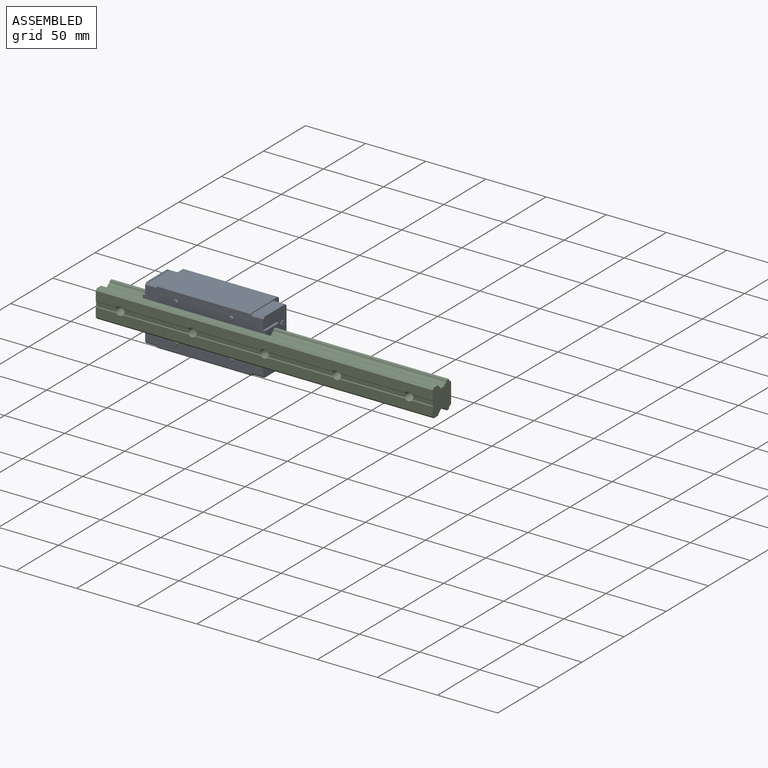
[diagram: assembled view]
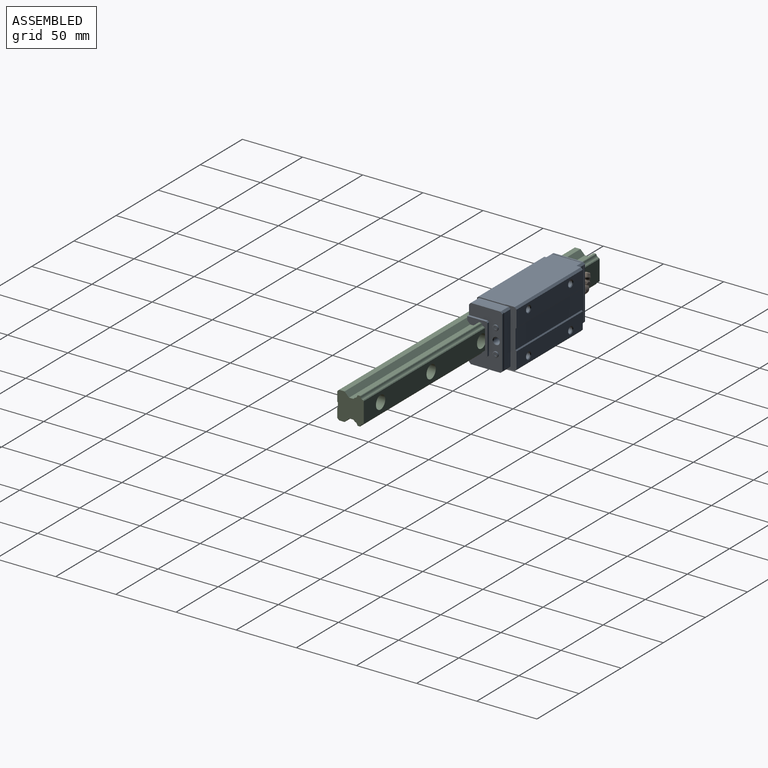
[diagram: assembled view, second angle]
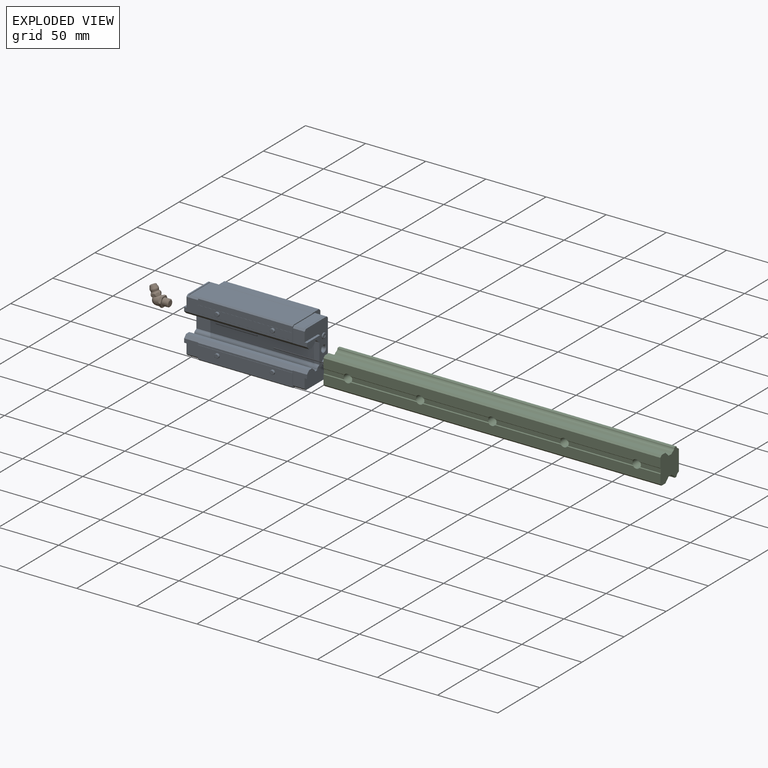
[diagram: exploded view]
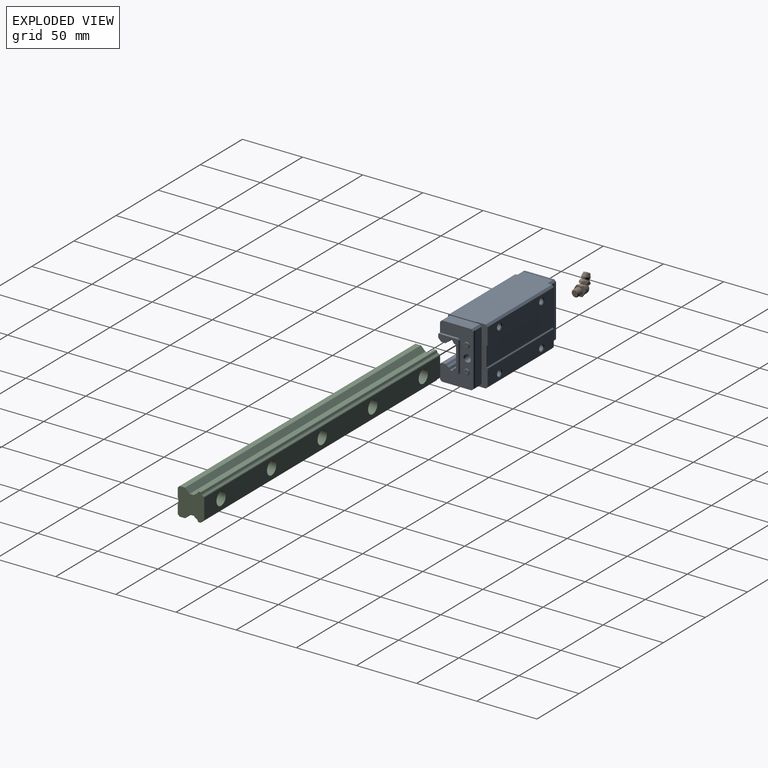
[diagram: exploded view, second angle]
ASSEMBLY  parts=3 mates=2
PART A: 166 faces, bbox 102.2x34.5x48 mm
  f0: cone r=2.46mm half-angle=60deg, axis (-1,0,0), area 21.9mm2, adj f132
  f1: plane 78.6x6mm, normal (0,-1,0), area 452.2mm2, adj f25,f26,f42,f43,f141,f144
  f2: plane 25x2mm, normal (0,1,0), area 50mm2, adj f3,f4,f51,f145
  f3: plane 2x1mm, normal (0,0.71,0.71), area 2.8mm2, adj f2,f51,f145,f146
  f4: plane 2x1mm, normal (0,0.71,-0.71), area 2.8mm2, adj f2,f51,f145,f165
  f5: plane 9.8x1.5mm, normal (0,0.71,0.71), area 20.4mm2, adj f6,f7,f26,f116,f117,f126,f127,f145
  f6: plane 24.68x8mm, normal (0,0,1), area 197.5mm2, adj f5,f12,f26,f126
  f7: plane 43x1.3mm, normal (0,1,0), area 55.9mm2, adj f5,f8,f116,f145
  f8: plane 9.8x1.5mm, normal (0,0.71,-0.71), area 20.4mm2, adj f7,f9,f26,f116,f117,f122,f123,f145
  f9: plane 24.68x1.3mm, normal (0,0,-1), area 32.1mm2, adj f8,f10,f122,f145
  f10: plane 9.8x1.5mm, normal (0,-0.71,-0.71), area 20.6mm2, adj f9,f26,f122,f123,f145,f160,f162
  f11: plane 11.8x11.22mm, normal (0,-1,0), area 116.4mm2, adj f12,f26,f51,f61,f145,f146
  f12: plane 9.8x1.5mm, normal (0,-0.71,0.71), area 20.6mm2, adj f6,f11,f26,f126,f127,f145,f164
  f13: cone r=2.46mm half-angle=45deg, axis (0,1,0), area 13.1mm2, adj f14,f27
  f14: cylinder r=2.46mm len=9.06mm, axis (0,-1,0), area 139.9mm2, adj f13,f15
  f15: cone r=866.03mm half-angle=60deg, axis (0,1,0), area 21.9mm2, adj f14
  f16: cone r=2.46mm half-angle=45deg, axis (0,1,0), area 13.1mm2, adj f17,f31
  f17: cylinder r=2.46mm len=9.06mm, axis (0,-1,0), area 139.9mm2, adj f16,f18
  f18: cone r=866.03mm half-angle=60deg, axis (0,1,0), area 21.9mm2, adj f17
  f19: cone r=2.46mm half-angle=45deg, axis (0,1,0), area 13.1mm2, adj f20,f31
  f20: cylinder r=2.46mm len=9.06mm, axis (0,-1,0), area 139.9mm2, adj f19,f21
  f21: cone r=866.03mm half-angle=60deg, axis (0,1,0), area 21.9mm2, adj f20
  f22: cone r=2.46mm half-angle=45deg, axis (0,1,0), area 13.1mm2, adj f23,f27
  f23: cylinder r=2.46mm len=9.06mm, axis (0,-1,0), area 139.9mm2, adj f22,f24
  f24: cone r=866.03mm half-angle=60deg, axis (0,1,0), area 21.9mm2, adj f23
  f25: plane 48x32.98mm, normal (1,0,0), area 277.1mm2, adj f1,f27,f28,f29,f30,f31,f32,f33
  f26: plane 48x32.98mm, normal (-1,0,0), area 277.1mm2, adj f1,f5,f6,f8,f10,f11,f12,f27
  f27: plane 78.6x13.65mm, normal (0,1,0), area 1016.3mm2, adj f13,f22,f25,f26,f28,f49
  f28: plane 78.6x0.85mm, normal (0,0.71,-0.71), area 94.5mm2, adj f25,f26,f27,f29
  f29: plane 78.6x16mm, normal (0,1,0), area 1257.6mm2, adj f25,f26,f28,f30
  f30: plane 78.6x0.85mm, normal (0,0.71,0.71), area 94.5mm2, adj f25,f26,f29,f31
  f31: plane 78.6x13.65mm, normal (0,1,0), area 1016.3mm2, adj f16,f19,f25,f26,f30,f32
  f32: plane 78.6x1.5mm, normal (0,0.71,-0.71), area 166.7mm2, adj f25,f26,f31,f33
  f33: plane 78.6x7.5mm, normal (0,0,-1), area 589.5mm2, adj f25,f26,f32,f34
  f34: plane 78.6x0.25mm, normal (0,-0.71,-0.71), area 27.8mm2, adj f25,f26,f33,f35
  f35: plane 78.6x22.63mm, normal (0,0,-1), area 1779mm2, adj f25,f26,f34,f36
  f36: plane 78.6x1mm, normal (0,-0.71,-0.71), area 111.2mm2, adj f25,f26,f35,f37
  f37: plane 78.6x4.7mm, normal (0,-1,0), area 369.4mm2, adj f25,f26,f36,f38
  f38: plane 78.6x0.1mm, normal (0,0,-1), area 7.9mm2, adj f25,f26,f37,f39
  f39: plane 78.6x6mm, normal (0,-1,0), area 452.2mm2, adj f25,f26,f38,f40,f135,f138
  f40: cylinder r=0.1mm len=78.6mm, axis (1,0,0), area 12.3mm2, adj f25,f26,f39,f159
  f41: plane 78.6x1.47mm, normal (0,-1,0), area 115.3mm2, adj f25,f26,f42,f61
  f42: cylinder r=0.1mm len=78.6mm, axis (1,0,0), area 12.3mm2, adj f1,f25,f26,f41
  f43: plane 78.6x0.1mm, normal (0,0,1), area 7.9mm2, adj f1,f25,f26,f44
  f44: plane 78.6x4.7mm, normal (0,-1,0), area 369.4mm2, adj f25,f26,f43,f45
  f45: plane 78.6x1mm, normal (0,-0.71,0.71), area 111.2mm2, adj f25,f26,f44,f46
  f46: plane 78.6x22.63mm, normal (0,0,1), area 1779mm2, adj f25,f26,f45,f47
  f47: plane 78.6x0.25mm, normal (0,-0.71,0.71), area 27.8mm2, adj f25,f26,f46,f48
  f48: plane 78.6x7.5mm, normal (0,0,1), area 589.5mm2, adj f25,f26,f47,f49
  f49: plane 78.6x1.5mm, normal (0,0.71,0.71), area 166.7mm2, adj f25,f26,f27,f48
  f50: plane 27x16.68mm, normal (1,0,0), area 177.4mm2, adj f52,f53,f54,f55,f56,f57,f58,f59
  f51: plane 27x16.68mm, normal (-1,0,0), area 177.4mm2, adj f2,f3,f4,f11,f57,f58,f59,f60
  f52: plane 2x1mm, normal (0,0.71,0.71), area 2.8mm2, adj f50,f53,f56,f147
  f53: plane 25x2mm, normal (0,1,0), area 50mm2, adj f50,f52,f54,f147
  f54: plane 2x1mm, normal (0,0.71,-0.71), area 2.8mm2, adj f50,f53,f55,f147
  f55: plane 15.68x2mm, normal (0,0,-1), area 31.4mm2, adj f50,f54,f147,f158
  f56: plane 15.68x2mm, normal (0,0,1), area 31.4mm2, adj f50,f52,f147,f153
  f57: plane 102.2x1.23mm, normal (0,0.71,0.71), area 177.9mm2, adj f50,f51,f58,f59
  f58: cylinder r=2.48mm len=102.2mm, axis (1,0,0), area 318.4mm2, adj f50,f51,f57,f62
  f59: plane 102.2x3.58mm, normal (0,0,1), area 365.9mm2, adj f50,f51,f57,f60
  f60: plane 102.2x2.68mm, normal (0,-0.71,0.71), area 381.1mm2, adj f25,f26,f50,f51,f59,f158,f159,f160
  f61: plane 102.2x2.68mm, normal (0,-0.71,-0.71), area 381.1mm2, adj f11,f25,f26,f41,f50,f51,f75,f153
  f62: plane 102.2x0.41mm, normal (0,0.71,0.71), area 59mm2, adj f50,f51,f58,f63
  f63: plane 102.2x1.83mm, normal (0,0,1), area 187mm2, adj f50,f51,f62,f64
  f64: plane 102.2x0.42mm, normal (0,-0.71,0.71), area 61.1mm2, adj f50,f51,f63,f65
  f65: cylinder r=2.48mm len=102.2mm, axis (1,0,0), area 315.4mm2, adj f50,f51,f64,f66
  f66: plane 102.2x0.62mm, normal (0,-0.71,0.71), area 90mm2, adj f50,f51,f65,f67
  f67: plane 102.2x16.82mm, normal (0,-1,0), area 1719mm2, adj f50,f51,f66,f68
  f68: plane 102.2x0.62mm, normal (0,-0.71,-0.71), area 90mm2, adj f50,f51,f67,f69
  f69: cylinder r=2.48mm len=102.2mm, axis (1,0,0), area 315.4mm2, adj f50,f51,f68,f70
  f70: plane 102.2x0.42mm, normal (0,-0.71,-0.71), area 61.1mm2, adj f50,f51,f69,f71
  f71: plane 102.2x1.83mm, normal (0,0,-1), area 187mm2, adj f50,f51,f70,f72
  f72: plane 102.2x0.41mm, normal (0,0.71,-0.71), area 59mm2, adj f50,f51,f71,f73
  f73: cylinder r=2.48mm len=102.2mm, axis (1,0,0), area 318.4mm2, adj f50,f51,f72,f74
  f74: plane 102.2x1.23mm, normal (0,0.71,-0.71), area 177.9mm2, adj f50,f51,f73,f75
  f75: plane 102.2x3.58mm, normal (0,0,-1), area 365.9mm2, adj f50,f51,f61,f74
  f76: cylinder r=2.25mm len=4.5mm, axis (-1,0,0), area 10.1mm2, adj f77,f147
  f77: torus R=2.01mm, axis (1,0,0), area 5.1mm2, adj f76,f78
  f78: plane 4.03x4.03mm, normal (1,0,0), area 9.3mm2, adj f77,f88,f89,f90,f91,f92,f93
  f79: plane 4.03x4.03mm, normal (-1,0,0), area 9.3mm2, adj f80,f102,f103,f104,f105,f106,f107
  f80: torus R=2.01mm, axis (1,0,0), area 5.1mm2, adj f79,f81
  f81: cylinder r=2.25mm len=4.5mm, axis (-1,0,0), area 10.1mm2, adj f80,f145
  f82: cylinder r=2.25mm len=4.5mm, axis (-1,0,0), area 10.1mm2, adj f83,f147
  f83: torus R=2.01mm, axis (1,0,0), area 5.1mm2, adj f82,f84
  f84: plane 4.03x4.03mm, normal (1,0,0), area 9.3mm2, adj f83,f95,f96,f97,f98,f99,f100
  f85: plane 4.03x4.03mm, normal (-1,0,0), area 9.3mm2, adj f86,f109,f110,f111,f112,f113,f114
  f86: torus R=2.01mm, axis (1,0,0), area 5.1mm2, adj f85,f87
  f87: cylinder r=2.25mm len=4.5mm, axis (-1,0,0), area 10.1mm2, adj f86,f145
  f88: plane 1.15x0.48mm, normal (0,0,-1), area 0.5mm2, adj f78,f89,f93,f94
  f89: plane 1x0.58mm, normal (0,0.87,-0.5), area 0.5mm2, adj f78,f88,f90,f94
  f90: plane 1x0.58mm, normal (0,0.87,0.5), area 0.5mm2, adj f78,f89,f91,f94
  f91: plane 1.15x0.48mm, normal (0,0,1), area 0.5mm2, adj f78,f90,f92,f94
  f92: plane 1x0.58mm, normal (0,-0.87,0.5), area 0.5mm2, adj f78,f91,f93,f94
  f93: plane 1x0.58mm, normal (0,-0.87,-0.5), area 0.5mm2, adj f78,f88,f92,f94
  f94: plane 2.31x2mm, normal (1,0,0), area 3.5mm2, adj f88,f89,f90,f91,f92,f93
  f95: plane 1.15x0.48mm, normal (0,0,-1), area 0.5mm2, adj f84,f96,f100,f101
  f96: plane 1x0.58mm, normal (0,0.87,-0.5), area 0.5mm2, adj f84,f95,f97,f101
  f97: plane 1x0.58mm, normal (0,0.87,0.5), area 0.5mm2, adj f84,f96,f98,f101
  f98: plane 1.15x0.48mm, normal (0,0,1), area 0.5mm2, adj f84,f97,f99,f101
  f99: plane 1x0.58mm, normal (0,-0.87,0.5), area 0.5mm2, adj f84,f98,f100,f101
  f100: plane 1x0.58mm, normal (0,-0.87,-0.5), area 0.5mm2, adj f84,f95,f99,f101
  f101: plane 2.31x2mm, normal (1,0,0), area 3.5mm2, adj f95,f96,f97,f98,f99,f100
  f102: plane 1.15x0.48mm, normal (0,0,-1), area 0.5mm2, adj f79,f103,f107,f108
  f103: plane 1x0.58mm, normal (0,0.87,-0.5), area 0.5mm2, adj f79,f102,f104,f108
  f104: plane 1x0.58mm, normal (0,0.87,0.5), area 0.5mm2, adj f79,f103,f105,f108
  f105: plane 1.15x0.48mm, normal (0,0,1), area 0.5mm2, adj f79,f104,f106,f108
  f106: plane 1x0.58mm, normal (0,-0.87,0.5), area 0.5mm2, adj f79,f105,f107,f108
  f107: plane 1x0.58mm, normal (0,-0.87,-0.5), area 0.5mm2, adj f79,f102,f106,f108
  f108: plane 2.31x2mm, normal (-1,0,0), area 3.5mm2, adj f102,f103,f104,f105,f106,f107
  f109: plane 1.15x0.48mm, normal (0,0,-1), area 0.5mm2, adj f85,f110,f114,f115
  f110: plane 1x0.58mm, normal (0,0.87,-0.5), area 0.5mm2, adj f85,f109,f111,f115
  f111: plane 1x0.58mm, normal (0,0.87,0.5), area 0.5mm2, adj f85,f110,f112,f115
  f112: plane 1.15x0.48mm, normal (0,0,1), area 0.5mm2, adj f85,f111,f113,f115
  f113: plane 1x0.58mm, normal (0,-0.87,0.5), area 0.5mm2, adj f85,f112,f114,f115
  f114: plane 1x0.58mm, normal (0,-0.87,-0.5), area 0.5mm2, adj f85,f109,f113,f115
  f115: plane 2.31x2mm, normal (-1,0,0), area 3.5mm2, adj f109,f110,f111,f112,f113,f114
  f116: plane 44x0.5mm, normal (1,0,0), area 21.7mm2, adj f5,f7,f8,f117
  f117: plane 44x0.5mm, normal (-0.71,0.71,0), area 30.8mm2, adj f5,f8,f116,f157
  f118: plane 44x0.5mm, normal (0.71,0.71,0), area 30.8mm2, adj f119,f148,f149,f150
  f119: plane 44x0.5mm, normal (-1,0,0), area 21.7mm2, adj f118,f148,f150,f156
  f120: plane 25.68x0.5mm, normal (0.71,0,-0.71), area 17.8mm2, adj f121,f150,f151,f152
  f121: plane 25.68x0.5mm, normal (-1,0,0), area 12.6mm2, adj f120,f150,f152,f161
  f122: plane 25.68x0.5mm, normal (1,0,0), area 12.6mm2, adj f8,f9,f10,f123
  f123: plane 25.68x0.5mm, normal (-0.71,0,-0.71), area 17.8mm2, adj f8,f10,f122,f162
  f124: plane 25.68x0.5mm, normal (0.71,0,0.71), area 17.8mm2, adj f125,f148,f154,f163
  f125: plane 25.68x0.5mm, normal (-1,0,0), area 12.6mm2, adj f124,f148,f154,f155
  f126: plane 25.68x0.5mm, normal (-0.71,0,0.71), area 17.8mm2, adj f5,f6,f12,f127
  f127: plane 25.68x0.5mm, normal (1,0,0), area 12.6mm2, adj f5,f12,f126,f164
  f128: cone r=866.03mm half-angle=60deg, axis (1,0,0), area 21.9mm2, adj f129
  f129: cylinder r=2.46mm len=5.46mm, axis (-1,0,0), area 84.3mm2, adj f128,f130
  f130: cone r=2.46mm half-angle=45deg, axis (1,0,0), area 13.1mm2, adj f129,f147
  f131: cone r=3mm half-angle=45deg, axis (-1,0,0), area 13.1mm2, adj f132,f145
  f132: cylinder r=2.46mm len=5.46mm, axis (-1,0,0), area 84.3mm2, adj f0,f131
  f133: plane 2.81x2.81mm, normal (0,-1,0), area 6.2mm2, adj f134
  f134: torus R=1.41mm, axis (0,1,0), area 5.7mm2, adj f133,f135
  f135: cylinder r=1.76mm len=3.52mm, axis (0,-1,0), area 12.9mm2, adj f39,f134
  f136: plane 2.81x2.81mm, normal (0,-1,0), area 6.2mm2, adj f137
  f137: torus R=1.41mm, axis (0,1,0), area 5.7mm2, adj f136,f138
  f138: cylinder r=1.76mm len=3.52mm, axis (0,-1,0), area 12.9mm2, adj f39,f137
  f139: plane 2.81x2.81mm, normal (0,-1,0), area 6.2mm2, adj f140
  f140: torus R=1.41mm, axis (0,1,0), area 5.7mm2, adj f139,f141
  f141: cylinder r=1.76mm len=3.52mm, axis (0,-1,0), area 12.9mm2, adj f1,f140
  f142: plane 2.81x2.81mm, normal (0,-1,0), area 6.2mm2, adj f143
  f143: torus R=1.41mm, axis (0,1,0), area 5.7mm2, adj f142,f144
  f144: cylinder r=1.76mm len=3.52mm, axis (0,-1,0), area 12.9mm2, adj f1,f143
  f145: plane 46x27.68mm, normal (-1,0,0), area 759.4mm2, adj f2,f3,f4,f5,f7,f8,f9,f10
  f146: plane 15.68x2mm, normal (0,0,1), area 31.4mm2, adj f3,f11,f51,f145
  f147: plane 46x27.68mm, normal (1,0,0), area 759.4mm2, adj f52,f53,f54,f55,f56,f76,f82,f130
  f148: plane 9.8x1.5mm, normal (0,0.71,0.71), area 20.4mm2, adj f25,f118,f119,f124,f125,f147,f149,f155
  f149: plane 43x8mm, normal (0,1,0), area 344mm2, adj f25,f118,f148,f150
  f150: plane 9.8x1.5mm, normal (0,0.71,-0.71), area 20.4mm2, adj f25,f118,f119,f120,f121,f147,f149,f151
  f151: plane 24.68x8mm, normal (0,0,-1), area 197.5mm2, adj f25,f120,f150,f152
  f152: plane 9.8x1.5mm, normal (0,-0.71,-0.71), area 20.6mm2, adj f25,f120,f121,f147,f151,f158,f161
  f153: plane 11.8x11.22mm, normal (0,-1,0), area 116.4mm2, adj f25,f50,f56,f61,f147,f154
  f154: plane 9.8x1.5mm, normal (0,-0.71,0.71), area 20.6mm2, adj f25,f124,f125,f147,f153,f155,f163
  f155: plane 24.68x1.3mm, normal (0,0,1), area 32.1mm2, adj f125,f147,f148,f154
  f156: plane 43x1.3mm, normal (0,1,0), area 55.9mm2, adj f119,f147,f148,f150
  f157: plane 43x8mm, normal (0,1,0), area 344mm2, adj f5,f8,f26,f117
  f158: plane 11.8x11.22mm, normal (0,-1,0), area 116.4mm2, adj f25,f50,f55,f60,f147,f152
  f159: plane 78.6x1.47mm, normal (0,-1,0), area 115.3mm2, adj f25,f26,f40,f60
  f160: plane 11.8x11.22mm, normal (0,-1,0), area 116.4mm2, adj f10,f26,f51,f60,f145,f165
  f161: plane 24.68x1.3mm, normal (0,0,-1), area 32.1mm2, adj f121,f147,f150,f152
  f162: plane 24.68x8mm, normal (0,0,-1), area 197.5mm2, adj f8,f10,f26,f123
  f163: plane 24.68x8mm, normal (0,0,1), area 197.5mm2, adj f25,f124,f148,f154
  f164: plane 24.68x1.3mm, normal (0,0,1), area 32.1mm2, adj f5,f12,f127,f145
  f165: plane 15.68x2mm, normal (0,0,-1), area 31.4mm2, adj f4,f51,f145,f160
PART B: 38 faces, bbox 16.7x9.4x15.9 mm
  f0: plane 4.18x2.67mm, normal (0,-1,0), area 7.7mm2, adj f1,f30,f31,f37
  f1: cone r=3.44mm half-angle=45deg, axis (-0.37,0,0.93), area 7.3mm2, adj f0,f2,f27,f28,f29,f30,f31
  f2: plane 4.18x2.67mm, normal (0,1,0), area 7.7mm2, adj f1,f28,f29,f37
  f3: plane 4.15x2.46mm, normal (0,-0.87,0.5), area 8.7mm2, adj f4,f10,f14,f15,f16,f25,f26
  f4: plane 9.24x8mm, normal (1,0,0), area 27.2mm2, adj f3,f5,f10,f11,f12,f13,f14
  f5: cylinder r=3mm len=6mm, axis (-1,0,0), area 82.7mm2, adj f4,f9
  f6: cylinder r=4mm len=8mm, axis (-1,0,0), area 77.5mm2, adj f7,f16,f18,f20,f22,f24,f26,f27
  f7: sphere r=4mm, area 81.2mm2, adj f6,f27
  f8: plane 4.77x4.77mm, normal (1,0,0), area 17.9mm2, adj f9
  f9: cone r=3mm half-angle=45deg, axis (-1,0,0), area 14.7mm2, adj f5,f8
  f10: plane 4.76x2.15mm, normal (0,0,1), area 8.7mm2, adj f3,f4,f11,f15,f16,f23,f24
  f11: plane 4.15x2.46mm, normal (0,0.87,0.5), area 8.7mm2, adj f4,f10,f12,f21,f22,f23,f24
  f12: plane 4.15x2.46mm, normal (0,0.87,-0.5), area 8.7mm2, adj f4,f11,f13,f19,f20,f21,f22
  f13: plane 4.76x2.15mm, normal (0,0,-1), area 8.7mm2, adj f4,f12,f14,f17,f18,f19,f20
  f14: plane 4.15x2.46mm, normal (0,-0.87,-0.5), area 8.7mm2, adj f3,f4,f13,f17,f18,f25,f26
  f15: cone r=4.12mm half-angle=45deg, axis (1,0,0), area 0.9mm2, adj f3,f10,f16
  f16: plane 3.46x2mm, normal (-1,0,0), area 0.4mm2, adj f3,f6,f10,f15
  f17: cone r=4.12mm half-angle=45deg, axis (1,0,0), area 0.9mm2, adj f13,f14,f18
  f18: plane 3.46x2mm, normal (-1,0,0), area 0.4mm2, adj f6,f13,f14,f17
  f19: cone r=4.12mm half-angle=45deg, axis (1,0,0), area 0.9mm2, adj f12,f13,f20
  f20: plane 3.46x2mm, normal (-1,0,0), area 0.4mm2, adj f6,f12,f13,f19
  f21: cone r=4.12mm half-angle=45deg, axis (1,0,0), area 0.9mm2, adj f11,f12,f22
  f22: plane 4x0.66mm, normal (-1,0,0), area 0.4mm2, adj f6,f11,f12,f21
  f23: cone r=4.12mm half-angle=45deg, axis (1,0,0), area 0.9mm2, adj f10,f11,f24
  f24: plane 3.46x2mm, normal (-1,0,0), area 0.4mm2, adj f6,f10,f11,f23
  f25: cone r=4.12mm half-angle=45deg, axis (1,0,0), area 0.9mm2, adj f3,f14,f26
  f26: plane 4x0.66mm, normal (-1,0,0), area 0.4mm2, adj f3,f6,f14,f25
  f27: plane 6.89x6.39mm, normal (0.37,0,-0.93), area 15.1mm2, adj f1,f6,f7
  f28: plane 3.5x2.31mm, normal (0.8,0.5,0.32), area 7.7mm2, adj f1,f2,f31,f37
  f29: plane 3.5x2.31mm, normal (-0.8,0.5,-0.32), area 7.7mm2, adj f1,f2,f30,f37
  f30: plane 3.5x2.31mm, normal (-0.8,-0.5,-0.32), area 7.7mm2, adj f0,f1,f29,f37
  f31: plane 3.5x2.31mm, normal (0.8,-0.5,0.32), area 7.7mm2, adj f0,f1,f28,f37
  f32: sphere r=1.82mm, area 4.4mm2, adj f33
  f33: plane 4.85x4.5mm, normal (-0.37,0,0.93), area 14.5mm2, adj f32,f34
  f34: cone r=3.3mm half-angle=18deg, axis (0.37,0,-0.93), area 51mm2, adj f33,f35
  f35: sphere r=3.3mm, area 30mm2, adj f34,f36
  f36: torus R=3.68mm, axis (-0.37,0,0.93), area 13.5mm2, adj f35,f37
  f37: torus R=8.32mm, axis (-0.37,0,0.93), area 26.7mm2, adj f0,f2,f28,f29,f30,f31,f36
PART C: 60 faces, bbox 280x22x23 mm
  f0: cylinder r=3.5mm len=13mm, axis (0,1,0), area 281.6mm2, adj f3,f4,f16,f17,f18,f19,f20,f54
  f1: cylinder r=5.5mm len=11mm, axis (0,1,0), area 311mm2, adj f32,f54
  f2: plane 11x11mm, normal (0,1,0), area 56.5mm2, adj f52,f53
  f3: plane 54.65x0.52mm, normal (0,-0.71,-0.71), area 38.4mm2, adj f0,f16,f19,f53
  f4: plane 17.33x0.52mm, normal (0,-0.71,-0.71), area 12.1mm2, adj f0,f17,f19,f42
  f5: plane 17.33x0.52mm, normal (0,-0.71,-0.71), area 12.1mm2, adj f6,f19,f41,f45
  f6: plane 16.97x3.5mm, normal (0,-1,0), area 58.3mm2, adj f5,f41,f45,f57
  f7: plane 53.94x3.5mm, normal (0,-1,0), area 186.6mm2, adj f8,f9,f45,f48
  f8: plane 54.65x0.52mm, normal (0,-0.71,-0.71), area 38.4mm2, adj f7,f19,f45,f48
  f9: plane 54.65x0.52mm, normal (0,-0.71,0.71), area 38.4mm2, adj f7,f18,f45,f48
  f10: plane 53.94x3.5mm, normal (0,-1,0), area 186.6mm2, adj f11,f12,f48,f51
  f11: plane 54.65x0.52mm, normal (0,-0.71,-0.71), area 38.4mm2, adj f10,f19,f48,f51
  f12: plane 54.65x0.52mm, normal (0,-0.71,0.71), area 38.4mm2, adj f10,f18,f48,f51
  f13: plane 53.94x3.5mm, normal (0,-1,0), area 186.6mm2, adj f14,f15,f51,f53
  f14: plane 54.65x0.52mm, normal (0,-0.71,-0.71), area 38.4mm2, adj f13,f19,f51,f53
  f15: plane 54.65x0.52mm, normal (0,-0.71,0.71), area 38.4mm2, adj f13,f18,f51,f53
  f16: plane 53.94x3.5mm, normal (0,-1,0), area 186.6mm2, adj f0,f3,f53,f59
  f17: plane 16.97x3.5mm, normal (0,-1,0), area 58.3mm2, adj f0,f4,f20,f42
  f18: plane 280x7.75mm, normal (0,-1,0), area 2146.7mm2, adj f0,f9,f12,f15,f20,f21,f41,f42
  f19: plane 280x7.75mm, normal (0,-1,0), area 2146.7mm2, adj f0,f3,f4,f5,f8,f11,f14,f41
  f20: plane 17.33x0.52mm, normal (0,-0.71,0.71), area 12.1mm2, adj f0,f17,f18,f42
  f21: plane 280x1.5mm, normal (0,-0.71,-0.71), area 594mm2, adj f18,f22,f41,f42
  f22: plane 280x4.6mm, normal (0,0,-1), area 1288mm2, adj f21,f23,f41,f42
  f23: plane 280x3.7mm, normal (0,0.71,-0.71), area 1465.1mm2, adj f22,f24,f41,f42
  f24: plane 280x3.58mm, normal (0,0,-1), area 1002.4mm2, adj f23,f25,f41,f42
  f25: plane 280x1.23mm, normal (0,-0.71,-0.71), area 487.3mm2, adj f24,f26,f41,f42
  f26: cylinder r=2.48mm len=280mm, axis (1,0,0), area 872.3mm2, adj f25,f27,f41,f42
  f27: plane 280x0.41mm, normal (0,-0.71,-0.71), area 161.8mm2, adj f26,f28,f41,f42
  f28: plane 280x1.83mm, normal (0,0,-1), area 512.5mm2, adj f27,f29,f41,f42
  f29: plane 280x0.42mm, normal (0,0.71,-0.71), area 167.5mm2, adj f28,f30,f41,f42
  f30: cylinder r=2.48mm len=280mm, axis (1,0,0), area 864.1mm2, adj f29,f31,f41,f42
  f31: plane 280x0.62mm, normal (0,0.71,-0.71), area 246.7mm2, adj f30,f32,f41,f42
  f32: plane 280x16.82mm, normal (0,1,0), area 4234.4mm2, adj f1,f31,f33,f41,f42,f43,f46,f49
  f33: plane 280x0.62mm, normal (0,0.71,0.71), area 246.7mm2, adj f32,f34,f41,f42
  f34: cylinder r=2.48mm len=280mm, axis (1,0,0), area 864.1mm2, adj f33,f35,f41,f42
  f35: plane 280x0.42mm, normal (0,0.71,0.71), area 167.5mm2, adj f34,f36,f41,f42
  f36: plane 280x1.83mm, normal (0,0,1), area 512.5mm2, adj f35,f37,f41,f42
  f37: plane 280x0.41mm, normal (0,-0.71,0.71), area 161.8mm2, adj f36,f38,f41,f42
  f38: cylinder r=2.48mm len=280mm, axis (1,0,0), area 872.3mm2, adj f37,f39,f41,f42
  f39: plane 280x1.23mm, normal (0,-0.71,0.71), area 487.3mm2, adj f38,f40,f41,f42
  f40: plane 280x3.58mm, normal (0,0,1), area 1002.4mm2, adj f39,f41,f42,f55
  f41: plane 23x22mm, normal (-1,0,0), area 434.6mm2, adj f5,f6,f18,f19,f21,f22,f23,f24
  f42: plane 23x22mm, normal (1,0,0), area 434.6mm2, adj f4,f17,f18,f19,f20,f21,f22,f23
  f43: cylinder r=5.5mm len=11mm, axis (0,1,0), area 311mm2, adj f32,f44
  f44: plane 11x11mm, normal (0,1,0), area 56.5mm2, adj f43,f45
  f45: cylinder r=3.5mm len=13mm, axis (0,1,0), area 281.6mm2, adj f5,f6,f7,f8,f9,f18,f19,f44
  f46: cylinder r=5.5mm len=11mm, axis (0,1,0), area 311mm2, adj f32,f47
  f47: plane 11x11mm, normal (0,1,0), area 56.5mm2, adj f46,f48
  f48: cylinder r=3.5mm len=13mm, axis (0,1,0), area 281.6mm2, adj f7,f8,f9,f10,f11,f12,f18,f19
  f49: cylinder r=5.5mm len=11mm, axis (0,1,0), area 311mm2, adj f32,f50
  f50: plane 11x11mm, normal (0,1,0), area 56.5mm2, adj f49,f51
  f51: cylinder r=3.5mm len=13mm, axis (0,1,0), area 281.6mm2, adj f10,f11,f12,f13,f14,f15,f18,f19
  f52: cylinder r=5.5mm len=11mm, axis (0,1,0), area 311mm2, adj f2,f32
  f53: cylinder r=3.5mm len=13mm, axis (0,1,0), area 281.6mm2, adj f2,f3,f13,f14,f15,f16,f18,f19
  f54: plane 11x11mm, normal (0,1,0), area 56.5mm2, adj f0,f1
  f55: plane 280x3.7mm, normal (0,0.71,0.71), area 1465.1mm2, adj f40,f41,f42,f56
  f56: plane 280x4.6mm, normal (0,0,1), area 1288mm2, adj f41,f42,f55,f58
  f57: plane 17.33x0.52mm, normal (0,-0.71,0.71), area 12.1mm2, adj f6,f18,f41,f45
  f58: plane 280x1.5mm, normal (0,-0.71,0.71), area 594mm2, adj f19,f41,f42,f56
  f59: plane 54.65x0.52mm, normal (0,-0.71,0.71), area 38.4mm2, adj f0,f16,f18,f53
PLACE A t=(-182.26,88.41,-202.19)mm
PLACE B t=(-231.36,112.91,-202.19)mm
PLACE C t=(-247.26,82.91,-202.19)mm fixed
MATE planar A.f67 <-> C.f52  axis (0,-1,0) through (-182.26,104.91,-202.19)mm
MATE fastened B.f5 <-> A.f0  axis (1,0,0) through (-231.36,112.91,-202.19)mm
